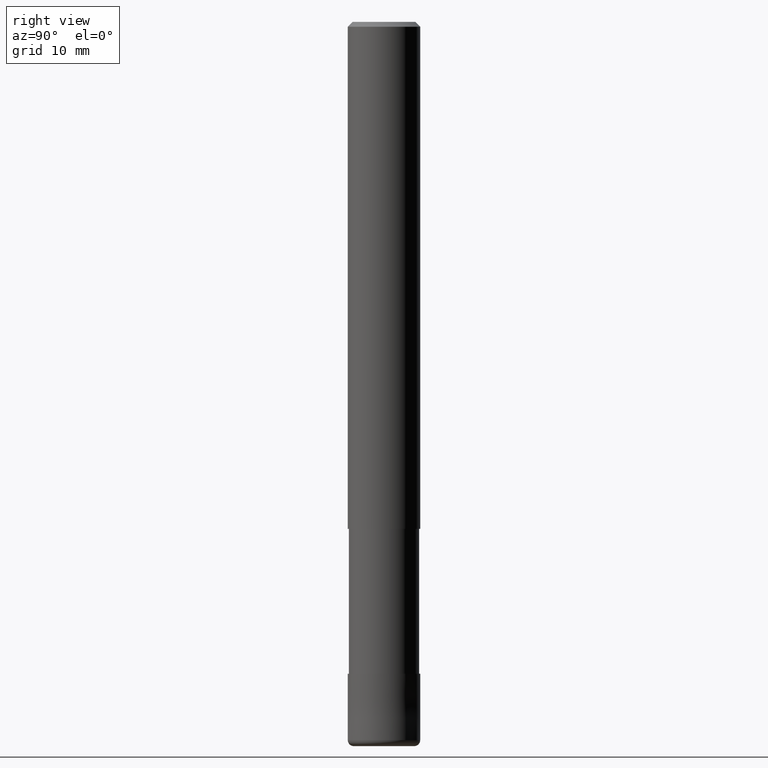
[diagram: clean part render]
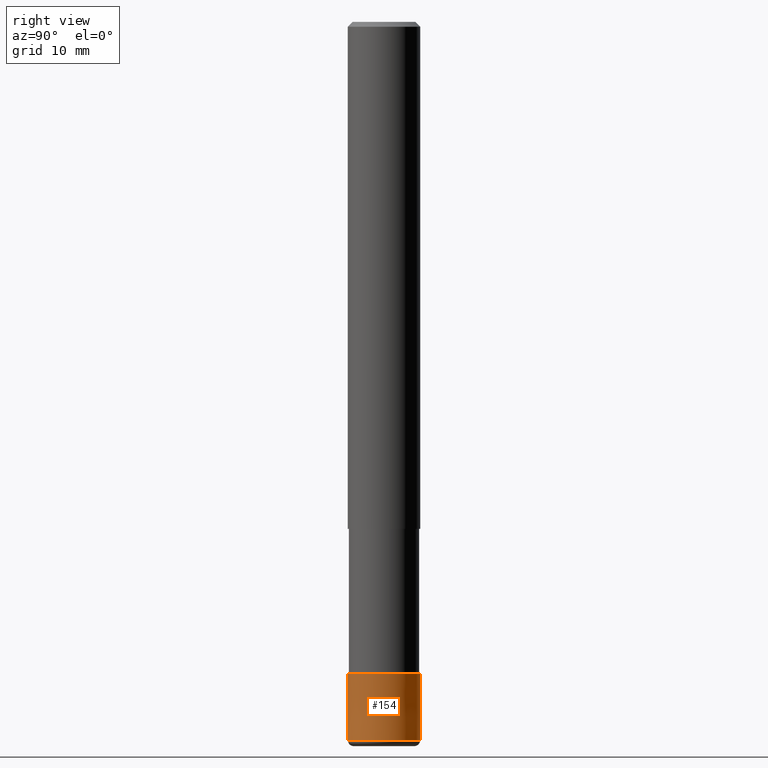
[diagram: same view with one face highlighted and labeled with its STEP entity id]
A machine part, right view. The second image highlights one B-rep face of the part: STEP entity #154.
In plain terms, the highlighted conical surface has half-angle 0.001 deg.
Its self-contained STEP definition (entity closure, byte-faithful):
#92=EDGE_CURVE('',#186,#194,#229,.T.);
#102=EDGE_CURVE('',#194,#162,#239,.T.);
#112=EDGE_CURVE('',#142,#162,#250,.T.);
#142=VERTEX_POINT('',#284);
#154=ADVANCED_FACE('',(#298),#299,.T.);
#162=VERTEX_POINT('',#307);
#186=VERTEX_POINT('',#336);
#194=VERTEX_POINT('',#345);
#200=EDGE_CURVE('',#142,#186,#352,.T.);
#229=CIRCLE('',#375,3.0);
#239=LINE('',#389,#390);
#250=CIRCLE('',#405,2.9999);
#284=CARTESIAN_POINT('',(0.0,2.9999,-54.0));
#298=FACE_OUTER_BOUND('',#460,.T.);
#299=CONICAL_SURFACE('',#461,2.99995,1.8181818179853E-005);
#307=CARTESIAN_POINT('',(3.67369660083175E-016,-2.9999,-54.0));
#336=CARTESIAN_POINT('',(0.0,3.0,-59.5));
#345=CARTESIAN_POINT('',(3.67381906146713E-016,-3.0,-59.5));
#352=LINE('',#524,#525);
#375=AXIS2_PLACEMENT_3D('',#540,#541,#542);
#389=CARTESIAN_POINT('',(3.67375783114944E-016,-2.99995,-56.75));
#390=VECTOR('',#552,1.0);
#405=AXIS2_PLACEMENT_3D('',#565,#566,#567);
#460=EDGE_LOOP('',(#639,#640,#641,#642));
#461=AXIS2_PLACEMENT_3D('',#643,#644,#645);
#524=CARTESIAN_POINT('',(-3.67375783114944E-016,2.99995,-56.75));
#525=VECTOR('',#700,1.0);
#540=CARTESIAN_POINT('',(0.0,0.0,-59.5));
#541=DIRECTION('',(0.0,0.0,-1.0));
#542=DIRECTION('',(0.0,1.0,0.0));
#552=DIRECTION('',(-2.22655700658645E-021,1.81818181788513E-005,0.999999999834711));
#565=CARTESIAN_POINT('',(0.0,0.0,-54.0));
#566=DIRECTION('',(0.0,0.0,-1.0));
#567=DIRECTION('',(0.0,1.0,0.0));
#639=ORIENTED_EDGE('',*,*,#200,.F.);
#640=ORIENTED_EDGE('',*,*,#112,.T.);
#641=ORIENTED_EDGE('',*,*,#102,.F.);
#642=ORIENTED_EDGE('',*,*,#92,.F.);
#643=CARTESIAN_POINT('',(0.0,0.0,-56.75));
#644=DIRECTION('',(0.0,-0.0,-1.0));
#645=DIRECTION('',(0.0,1.0,0.0));
#700=DIRECTION('',(-2.22655700658645E-021,1.81818181788513E-005,-0.999999999834711));